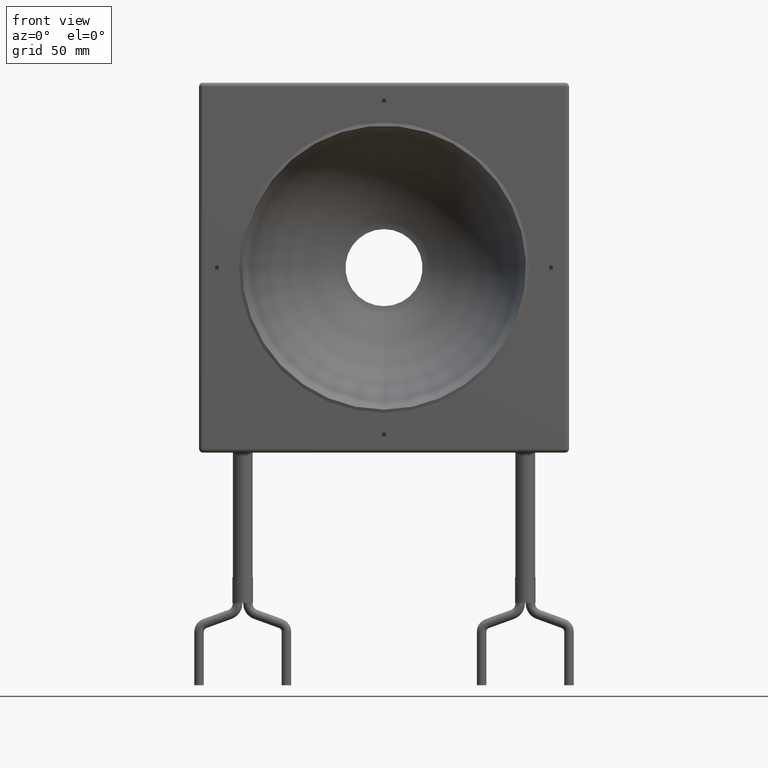
[diagram: clean part render]
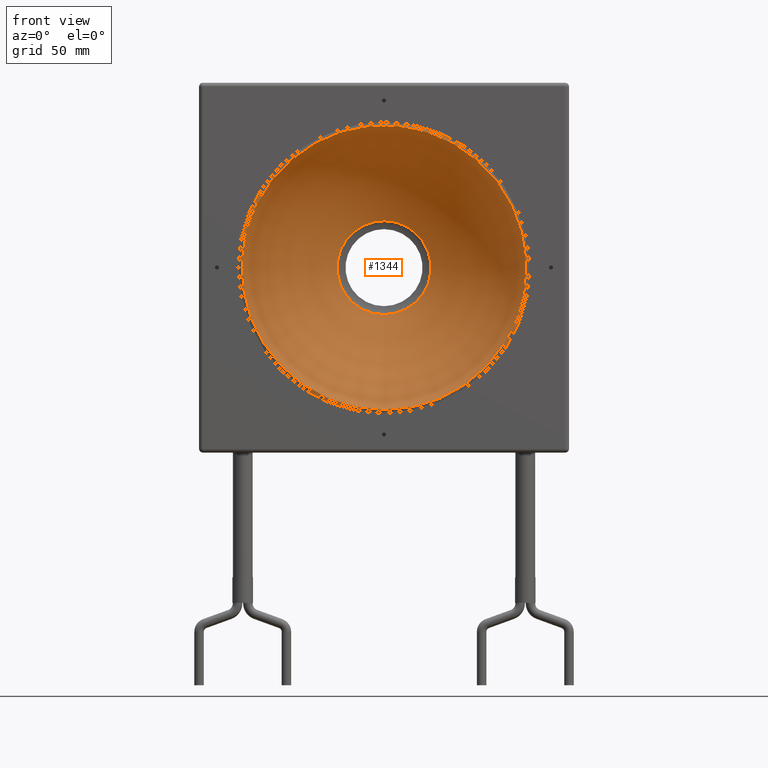
[diagram: same view with one face highlighted and labeled with its STEP entity id]
A machine part, front view. The second image highlights one B-rep face of the part: STEP entity #1344.
In plain terms, the highlighted toroidal blend (fillet) surface has major radius 0.0082 mm and minor (blend) radius 56.9327 mm.
Its self-contained STEP definition (entity closure, byte-faithful):
#61 = DIRECTION ( 'NONE',  ( 0.0000000000000000000, 0.0000000000000000000, -1.000000000000000000 ) ) ;
#242 = CIRCLE ( 'NONE', #1597, 55.27268775814418000 ) ;
#247 = DIRECTION ( 'NONE',  ( -0.0000000000000000000, -1.000000000000000000, -0.0000000000000000000 ) ) ;
#258 = VERTEX_POINT ( 'NONE', #1812 ) ;
#262 = FACE_OUTER_BOUND ( 'NONE', #1754, .T. ) ;
#305 = TOROIDAL_SURFACE ( 'NONE', #375, 0.008209201276039579400, 56.93267024370852200 ) ;
#327 = CARTESIAN_POINT ( 'NONE',  ( 0.0000000000000000000, 44.45535374624346000, -18.28371565218613500 ) ) ;
#375 = AXIS2_PLACEMENT_3D ( 'NONE', #664, #1398, #61 ) ;
#451 = CARTESIAN_POINT ( 'NONE',  ( 0.0000000000000000000, 44.45535374624346000, 0.0000000000000000000 ) ) ;
#530 = AXIS2_PLACEMENT_3D ( 'NONE', #451, #1495, #607 ) ;
#607 = DIRECTION ( 'NONE',  ( 0.0000000000000000000, 0.0000000000000000000, -1.000000000000000000 ) ) ;
#664 = CARTESIAN_POINT ( 'NONE',  ( 0.0000000000000000000, -9.464353273005061200, 0.0000000000000000000 ) ) ;
#915 = EDGE_LOOP ( 'NONE', ( #956 ) ) ;
#956 = ORIENTED_EDGE ( 'NONE', *, *, #1792, .F. ) ;
#1150 = CARTESIAN_POINT ( 'NONE',  ( 0.0000000000000000000, 4.216522097975957500, 0.0000000000000000000 ) ) ;
#1192 = ORIENTED_EDGE ( 'NONE', *, *, #1558, .T. ) ;
#1297 = DIRECTION ( 'NONE',  ( 0.0000000000000000000, 0.0000000000000000000, -1.000000000000000000 ) ) ;
#1344 = ADVANCED_FACE ( 'NONE', ( #1851, #262 ), #305, .F. ) ;
#1398 = DIRECTION ( 'NONE',  ( -0.0000000000000000000, -1.000000000000000000, -0.0000000000000000000 ) ) ;
#1495 = DIRECTION ( 'NONE',  ( -0.0000000000000000000, -1.000000000000000000, -0.0000000000000000000 ) ) ;
#1558 = EDGE_CURVE ( 'NONE', #258, #258, #242, .T. ) ;
#1597 = AXIS2_PLACEMENT_3D ( 'NONE', #1150, #247, #1297 ) ;
#1661 = CIRCLE ( 'NONE', #530, 18.28371565218613500 ) ;
#1748 = VERTEX_POINT ( 'NONE', #327 ) ;
#1754 = EDGE_LOOP ( 'NONE', ( #1192 ) ) ;
#1792 = EDGE_CURVE ( 'NONE', #1748, #1748, #1661, .T. ) ;
#1812 = CARTESIAN_POINT ( 'NONE',  ( 0.0000000000000000000, 4.216522097975957500, -55.27268775814418000 ) ) ;
#1851 = FACE_OUTER_BOUND ( 'NONE', #915, .T. ) ;